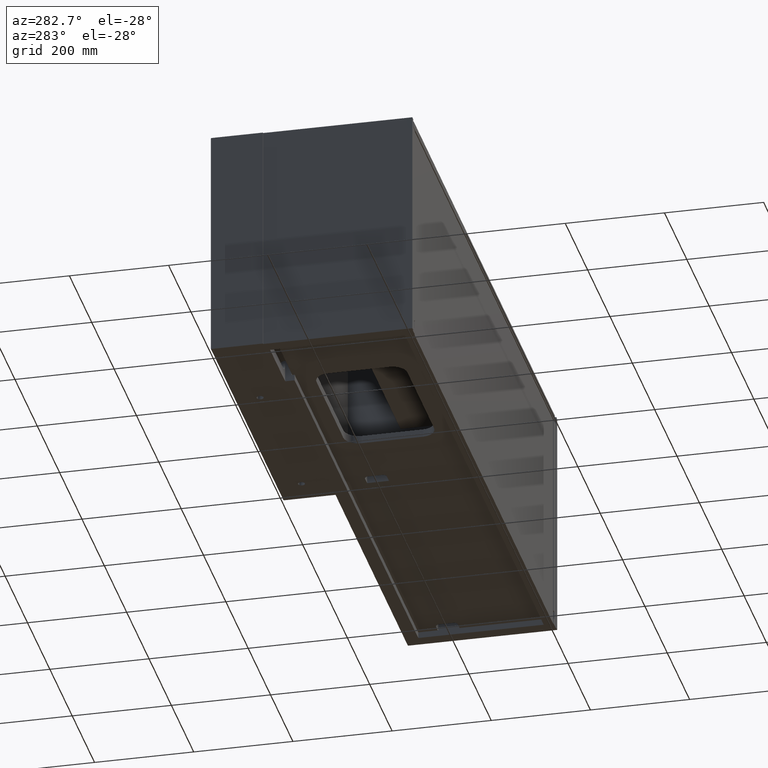
[diagram: clean part render]
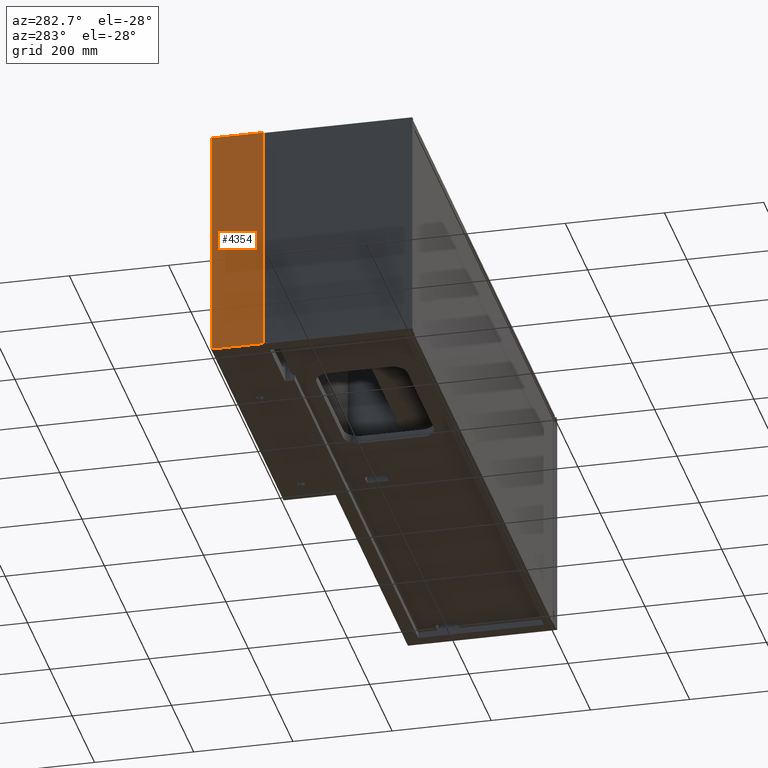
[diagram: same view with one face highlighted and labeled with its STEP entity id]
A machine part, auxiliary view. The second image highlights one B-rep face of the part: STEP entity #4354.
In plain terms, the highlighted planar face has unit normal (1, -0, 0).
Its self-contained STEP definition (entity closure, byte-faithful):
#1631 = VERTEX_POINT ( 'NONE', #5678 ) ;
#2077 = CARTESIAN_POINT ( 'NONE',  ( 5.551115123125782702E-14, 404.9999999999999432, -3.719247132494274410E-12 ) ) ;
#2217 = LINE ( 'NONE', #7222, #6377 ) ;
#2519 = LINE ( 'NONE', #7520, #12518 ) ;
#2662 = VECTOR ( 'NONE', #4481, 1000.000000000000000 ) ;
#3027 = CARTESIAN_POINT ( 'NONE',  ( 5.551115123125782702E-14, 300.0000000000000000, -3.719247132494274410E-12 ) ) ;
#4264 = CARTESIAN_POINT ( 'NONE',  ( 5.551115123125782702E-14, 403.9999999999999432, -470.0000000000037517 ) ) ;
#4354 = ADVANCED_FACE ( 'NONE', ( #8318 ), #13278, .F. ) ;
#4481 = DIRECTION ( 'NONE',  ( -0.0000000000000000000, -1.000000000000000000, -0.0000000000000000000 ) ) ;
#4576 = ORIENTED_EDGE ( 'NONE', *, *, #14116, .T. ) ;
#4640 = LINE ( 'NONE', #9655, #10582 ) ;
#5497 = AXIS2_PLACEMENT_3D ( 'NONE', #2077, #7084, #12054 ) ;
#5678 = CARTESIAN_POINT ( 'NONE',  ( 5.551115123125782702E-14, 300.0000000000000000, -470.0000000000037517 ) ) ;
#5982 = CARTESIAN_POINT ( 'NONE',  ( 5.551115123125782702E-14, 403.9999999999999432, -3.719247132494274410E-12 ) ) ;
#5999 = VERTEX_POINT ( 'NONE', #4264 ) ;
#6330 = EDGE_CURVE ( 'NONE', #12878, #5999, #2519, .T. ) ;
#6377 = VECTOR ( 'NONE', #12189, 1000.000000000000000 ) ;
#6501 = ORIENTED_EDGE ( 'NONE', *, *, #15098, .T. ) ;
#7084 = DIRECTION ( 'NONE',  ( 1.000000000000000000, -0.0000000000000000000, 0.0000000000000000000 ) ) ;
#7222 = CARTESIAN_POINT ( 'NONE',  ( 5.551115123125782702E-14, 300.0000000000000000, -3.719247132494274410E-12 ) ) ;
#7520 = CARTESIAN_POINT ( 'NONE',  ( 5.551115123125782702E-14, 403.9999999999999432, -3.719247132494274410E-12 ) ) ;
#7814 = VERTEX_POINT ( 'NONE', #3027 ) ;
#8123 = EDGE_LOOP ( 'NONE', ( #10761, #11149, #4576, #6501 ) ) ;
#8318 = FACE_OUTER_BOUND ( 'NONE', #8123, .T. ) ;
#9655 = CARTESIAN_POINT ( 'NONE',  ( 5.551115123125782702E-14, 404.9999999999999432, -470.0000000000037517 ) ) ;
#9829 = EDGE_CURVE ( 'NONE', #12878, #7814, #10697, .T. ) ;
#10582 = VECTOR ( 'NONE', #14596, 1000.000000000000000 ) ;
#10697 = LINE ( 'NONE', #15659, #2662 ) ;
#10761 = ORIENTED_EDGE ( 'NONE', *, *, #9829, .F. ) ;
#11149 = ORIENTED_EDGE ( 'NONE', *, *, #6330, .T. ) ;
#12054 = DIRECTION ( 'NONE',  ( 0.0000000000000000000, 0.0000000000000000000, -1.000000000000000000 ) ) ;
#12189 = DIRECTION ( 'NONE',  ( -0.0000000000000000000, -0.0000000000000000000, 1.000000000000000000 ) ) ;
#12492 = DIRECTION ( 'NONE',  ( -0.0000000000000000000, -0.0000000000000000000, -1.000000000000000000 ) ) ;
#12518 = VECTOR ( 'NONE', #12492, 1000.000000000000000 ) ;
#12878 = VERTEX_POINT ( 'NONE', #5982 ) ;
#13278 = PLANE ( 'NONE',  #5497 ) ;
#14116 = EDGE_CURVE ( 'NONE', #5999, #1631, #4640, .T. ) ;
#14596 = DIRECTION ( 'NONE',  ( -0.0000000000000000000, -1.000000000000000000, -0.0000000000000000000 ) ) ;
#15098 = EDGE_CURVE ( 'NONE', #1631, #7814, #2217, .T. ) ;
#15659 = CARTESIAN_POINT ( 'NONE',  ( 5.551115123125782702E-14, 404.9999999999999432, -3.719247132494274410E-12 ) ) ;